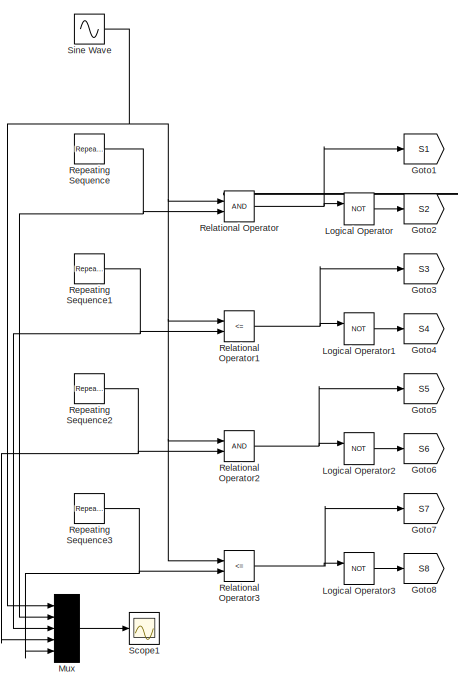
[diagram: root canvas - part 1/2, left side, full height]
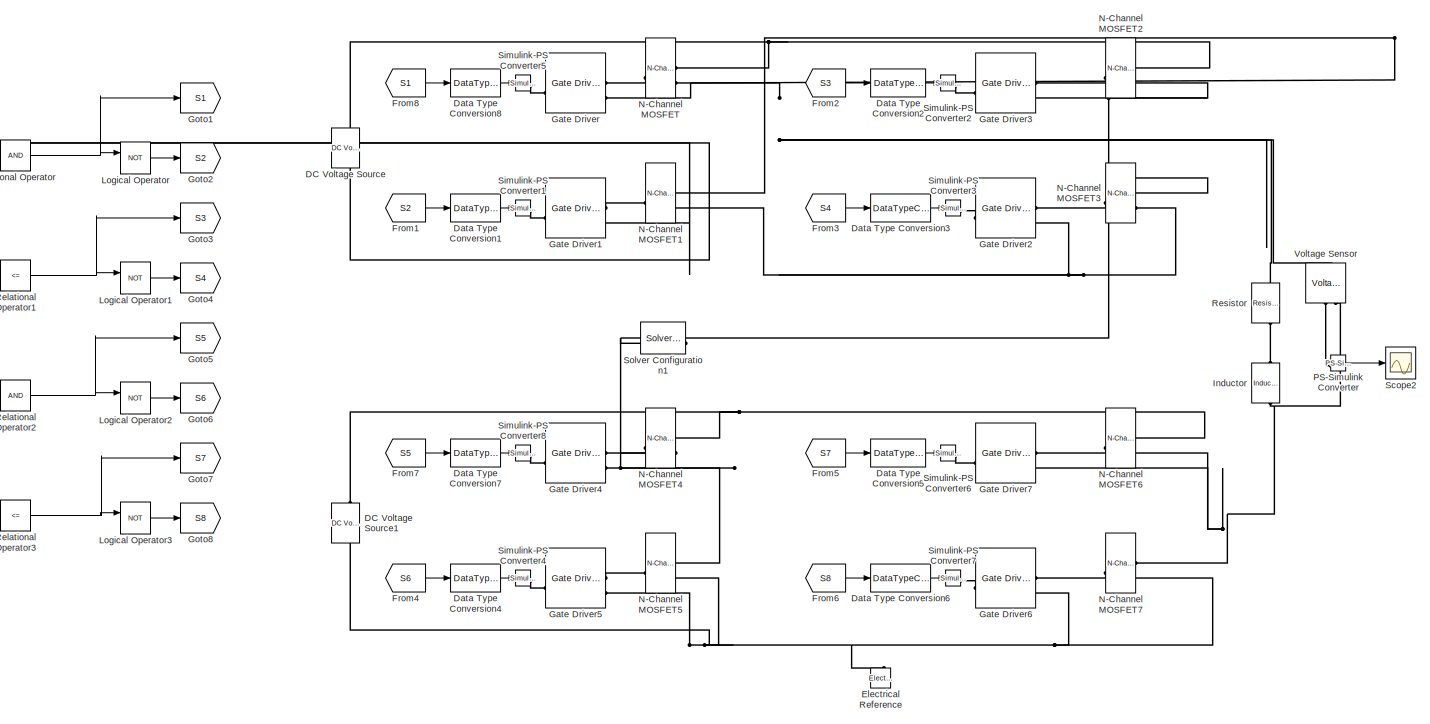
[diagram: root canvas - part 2/2, most of the canvas]
MODEL slx_410971dcdea7
KIND model
CONFIG AbsTol = auto
CONFIG EnableMultiTasking = on
CONFIG FixedStep = 1e-6
CONFIG MaxStep = auto
CONFIG MinStep = auto
CONFIG RelTol = 1e-4
CONFIG SampleTimeConstraint = Unconstrained
CONFIG SolverName = ode15s
CONFIG StartTime = 0.0
CONFIG StopTime = 0.2
BLOCK [Reference] DC Voltage Source  REF=fl_lib/Electrical/Electrical Sources/DC Voltage Source
  NameLocation = right
  SourceBlock = fl_lib/Electrical/Electrical Sources/DC Voltage Source
  SourceType = DC Voltage Source
BLOCK [Reference] DC Voltage Source1  REF=fl_lib/Electrical/Electrical Sources/DC Voltage Source
  NameLocation = right
  SourceBlock = fl_lib/Electrical/Electrical Sources/DC Voltage Source
  SourceType = DC Voltage Source
BLOCK [DataTypeConversion] Data Type Conversion1
  RndMeth = Floor
  SaturateOnIntegerOverflow = off
BLOCK [DataTypeConversion] Data Type Conversion2
  RndMeth = Floor
  SaturateOnIntegerOverflow = off
BLOCK [DataTypeConversion] Data Type Conversion3
  RndMeth = Floor
  SaturateOnIntegerOverflow = off
BLOCK [DataTypeConversion] Data Type Conversion4
  RndMeth = Floor
  SaturateOnIntegerOverflow = off
BLOCK [DataTypeConversion] Data Type Conversion5
  RndMeth = Floor
  SaturateOnIntegerOverflow = off
BLOCK [DataTypeConversion] Data Type Conversion6
  RndMeth = Floor
  SaturateOnIntegerOverflow = off
BLOCK [DataTypeConversion] Data Type Conversion7
  RndMeth = Floor
  SaturateOnIntegerOverflow = off
BLOCK [DataTypeConversion] Data Type Conversion8
  RndMeth = Floor
  SaturateOnIntegerOverflow = off
BLOCK [Reference] Electrical Reference  REF=fl_lib/Electrical/Electrical Elements/Electrical Reference
  NameLocation = right
  SourceBlock = fl_lib/Electrical/Electrical Elements/Electrical Reference
  SourceType = Electrical Reference
BLOCK [From] From1
  GotoTag = S2
BLOCK [From] From2
  GotoTag = S3
BLOCK [From] From3
  GotoTag = S4
BLOCK [From] From4
  GotoTag = S6
BLOCK [From] From5
  GotoTag = S7
BLOCK [From] From6
  GotoTag = S8
BLOCK [From] From7
  GotoTag = S5
BLOCK [From] From8
  GotoTag = S1
BLOCK [Reference] Gate Driver  REF=ee_lib/Semiconductors &
Converters/Gate Driver
  SourceBlock = ee_lib/Semiconductors &\nConverters/Gate Driver
  SourceType = Gate Driver
BLOCK [Reference] Gate Driver1  REF=ee_lib/Semiconductors &
Converters/Gate Driver
  SourceBlock = ee_lib/Semiconductors &\nConverters/Gate Driver
  SourceType = Gate Driver
BLOCK [Reference] Gate Driver2  REF=ee_lib/Semiconductors &
Converters/Gate Driver
  SourceBlock = ee_lib/Semiconductors &\nConverters/Gate Driver
  SourceType = Gate Driver
BLOCK [Reference] Gate Driver3  REF=ee_lib/Semiconductors &
Converters/Gate Driver
  SourceBlock = ee_lib/Semiconductors &\nConverters/Gate Driver
  SourceType = Gate Driver
BLOCK [Reference] Gate Driver4  REF=ee_lib/Semiconductors &
Converters/Gate Driver
  SourceBlock = ee_lib/Semiconductors &\nConverters/Gate Driver
  SourceType = Gate Driver
BLOCK [Reference] Gate Driver5  REF=ee_lib/Semiconductors &
Converters/Gate Driver
  SourceBlock = ee_lib/Semiconductors &\nConverters/Gate Driver
  SourceType = Gate Driver
BLOCK [Reference] Gate Driver6  REF=ee_lib/Semiconductors &
Converters/Gate Driver
  SourceBlock = ee_lib/Semiconductors &\nConverters/Gate Driver
  SourceType = Gate Driver
BLOCK [Reference] Gate Driver7  REF=ee_lib/Semiconductors &
Converters/Gate Driver
  SourceBlock = ee_lib/Semiconductors &\nConverters/Gate Driver
  SourceType = Gate Driver
BLOCK [Goto] Goto1
  GotoTag = S1
BLOCK [Goto] Goto2
  GotoTag = S2
BLOCK [Goto] Goto3
  GotoTag = S3
BLOCK [Goto] Goto4
  GotoTag = S4
BLOCK [Goto] Goto5
  GotoTag = S5
BLOCK [Goto] Goto6
  GotoTag = S6
BLOCK [Goto] Goto7
  GotoTag = S7
BLOCK [Goto] Goto8
  GotoTag = S8
BLOCK [Reference] Inductor  REF=fl_lib/Electrical/Electrical Elements/Inductor
  NameLocation = left
  SourceBlock = fl_lib/Electrical/Electrical Elements/Inductor
  SourceType = Inductor
BLOCK [Logic] Logical Operator
  AllPortsSameDT = off
  Operator = NOT
  OutDataTypeStr = boolean
BLOCK [Logic] Logical Operator1
  AllPortsSameDT = off
  Operator = NOT
  OutDataTypeStr = boolean
BLOCK [Logic] Logical Operator2
  AllPortsSameDT = off
  Operator = NOT
  OutDataTypeStr = boolean
BLOCK [Logic] Logical Operator3
  AllPortsSameDT = off
  Operator = NOT
  OutDataTypeStr = boolean
BLOCK [Mux] Mux
  DisplayOption = bar
  Inputs = 5
BLOCK [Reference] N-Channel MOSFET  REF=ee_lib/Semiconductors &
Converters/N-Channel MOSFET
  SourceBlock = ee_lib/Semiconductors &\nConverters/N-Channel MOSFET
  SourceType = N-Channel MOSFET
BLOCK [Reference] N-Channel MOSFET1  REF=ee_lib/Semiconductors &
Converters/N-Channel MOSFET
  SourceBlock = ee_lib/Semiconductors &\nConverters/N-Channel MOSFET
  SourceType = N-Channel MOSFET
BLOCK [Reference] N-Channel MOSFET2  REF=ee_lib/Semiconductors &
Converters/N-Channel MOSFET
  SourceBlock = ee_lib/Semiconductors &\nConverters/N-Channel MOSFET
  SourceType = N-Channel MOSFET
BLOCK [Reference] N-Channel MOSFET3  REF=ee_lib/Semiconductors &
Converters/N-Channel MOSFET
  SourceBlock = ee_lib/Semiconductors &\nConverters/N-Channel MOSFET
  SourceType = N-Channel MOSFET
BLOCK [Reference] N-Channel MOSFET4  REF=ee_lib/Semiconductors &
Converters/N-Channel MOSFET
  SourceBlock = ee_lib/Semiconductors &\nConverters/N-Channel MOSFET
  SourceType = N-Channel MOSFET
BLOCK [Reference] N-Channel MOSFET5  REF=ee_lib/Semiconductors &
Converters/N-Channel MOSFET
  SourceBlock = ee_lib/Semiconductors &\nConverters/N-Channel MOSFET
  SourceType = N-Channel MOSFET
BLOCK [Reference] N-Channel MOSFET6  REF=ee_lib/Semiconductors &
Converters/N-Channel MOSFET
  SourceBlock = ee_lib/Semiconductors &\nConverters/N-Channel MOSFET
  SourceType = N-Channel MOSFET
BLOCK [Reference] N-Channel MOSFET7  REF=ee_lib/Semiconductors &
Converters/N-Channel MOSFET
  SourceBlock = ee_lib/Semiconductors &\nConverters/N-Channel MOSFET
  SourceType = N-Channel MOSFET
BLOCK [Reference] PS-Simulink Converter  REF=nesl_utility/PS-Simulink
Converter
  SourceBlock = nesl_utility/PS-Simulink\nConverter
  SourceType = PS-Simulink\nConverter
BLOCK [RelationalOperator] Relational Operator
  InputSameDT = off
  OutDataTypeStr = boolean
BLOCK [RelationalOperator] Relational Operator1
  InputSameDT = off
  Operator = <=
  OutDataTypeStr = boolean
BLOCK [RelationalOperator] Relational Operator2
  InputSameDT = off
  OutDataTypeStr = boolean
BLOCK [RelationalOperator] Relational Operator3
  InputSameDT = off
  Operator = <=
  OutDataTypeStr = boolean
BLOCK [Reference] Repeating Sequence  REF=simulink/Sources/Repeating
Sequence
  SourceBlock = simulink/Sources/Repeating\nSequence
  SourceType = Repeating table
BLOCK [Reference] Repeating Sequence1  REF=simulink/Sources/Repeating
Sequence
  SourceBlock = simulink/Sources/Repeating\nSequence
  SourceType = Repeating table
BLOCK [Reference] Repeating Sequence2  REF=simulink/Sources/Repeating
Sequence
  SourceBlock = simulink/Sources/Repeating\nSequence
  SourceType = Repeating table
BLOCK [Reference] Repeating Sequence3  REF=simulink/Sources/Repeating
Sequence
  SourceBlock = simulink/Sources/Repeating\nSequence
  SourceType = Repeating table
BLOCK [Reference] Resistor  REF=fl_lib/Electrical/Electrical Elements/Resistor
  NameLocation = left
  SourceBlock = fl_lib/Electrical/Electrical Elements/Resistor
  SourceType = Resistor
BLOCK [Scope] Scope1
  ActiveDisplayYMaximum = 1.201490399003224
  ActiveDisplayYMinimum = -1.0531958724119033
  DataLoggingVariableName = ScopeData1
  Floating = off
  GraphicalSettings = {"Style":{"BackgroundColor":[0.12941176470588237,0.12941176470588237,0.12941176470588237],"AxesColor":[0.07058823529411765,0.07058823529411765,0.07058823529411765],"LabelsColor":[0.8509803921568627,0.8509803921568627,0.8509803921568627],"PreserveColors":false,"Visible":[true,true,true,true,true],"LineStyle":["-","-","-","-","-"],"LineWidth":[1.5,1.5,1.5,1.5,1.5],"BarWidth":[0.9,0.9,0.9,0.9,0.9],"L...<+2551ch>
  MultipleDisplayCache = [{"MaxYLimMag":1.2497264913706925,"MaxYLimReal":1.201490399003224,"MinYLimMag":0,"MinYLimReal":-1.0531958724119033,"PlotAsMagnitudePhase":false,"ShowGrid":true,"ShowLegend":true,"Title":"%<SignalLabel>","YLabel":""}]
  NumInputPorts = 1
  ScopeFrameLocation = window
  ShowLegend = on
  WasSavedAsWebScope = on
  WindowPosition = [0.000000,36.000000,1920.000000,1009.000000,]
BLOCK [Scope] Scope2
  ActiveDisplayYMaximum = 249.03228578257736
  ActiveDisplayYMinimum = -249.02994093911528
  Floating = off
  GraphicalSettings = {"AxesScalingProperties":{"AlignXAxis":"Center","AlignYAxis":"Center","AutoScaleXAxisLimits":false,"AxesScaling":"Manual","AxesScalingNumUpdates":10,"ExpandOnly":true,"ScaleAxesLimitsAtStop":false,"XAxisDataRange":100,"YAxisDataRange":80},"DisplayProperties":{"ColorOrder":["auto","auto","auto","auto","auto","auto","auto","auto","auto","auto","auto","auto","auto","auto","auto","auto","auto","auto",...<+2032ch>
  MultipleDisplayCache = [{"MaxYLimMag":249.03228578257736,"MaxYLimReal":249.03228578257736,"MinYLimMag":0,"MinYLimReal":-249.02994093911528,"PlotAsMagnitudePhase":false,"ShowGrid":true,"ShowLegend":false,"Title":"%<SignalLabel>","YLabel":""}]
  NumInputPorts = 1
  ScopeFrameLocation = window
  WasSavedAsWebScope = on
  WindowPosition = [1.000000,49.000000,1920.000000,1009.000000,]
BLOCK [Reference] Simulink-PS Converter1  REF=nesl_utility/Simulink-PS
Converter
  SourceBlock = nesl_utility/Simulink-PS\nConverter
  SourceType = Simulink-PS\nConverter
BLOCK [Reference] Simulink-PS Converter2  REF=nesl_utility/Simulink-PS
Converter
  SourceBlock = nesl_utility/Simulink-PS\nConverter
  SourceType = Simulink-PS\nConverter
BLOCK [Reference] Simulink-PS Converter3  REF=nesl_utility/Simulink-PS
Converter
  SourceBlock = nesl_utility/Simulink-PS\nConverter
  SourceType = Simulink-PS\nConverter
BLOCK [Reference] Simulink-PS Converter4  REF=nesl_utility/Simulink-PS
Converter
  SourceBlock = nesl_utility/Simulink-PS\nConverter
  SourceType = Simulink-PS\nConverter
BLOCK [Reference] Simulink-PS Converter5  REF=nesl_utility/Simulink-PS
Converter
  SourceBlock = nesl_utility/Simulink-PS\nConverter
  SourceType = Simulink-PS\nConverter
BLOCK [Reference] Simulink-PS Converter6  REF=nesl_utility/Simulink-PS
Converter
  SourceBlock = nesl_utility/Simulink-PS\nConverter
  SourceType = Simulink-PS\nConverter
BLOCK [Reference] Simulink-PS Converter7  REF=nesl_utility/Simulink-PS
Converter
  SourceBlock = nesl_utility/Simulink-PS\nConverter
  SourceType = Simulink-PS\nConverter
BLOCK [Reference] Simulink-PS Converter8  REF=nesl_utility/Simulink-PS
Converter
  SourceBlock = nesl_utility/Simulink-PS\nConverter
  SourceType = Simulink-PS\nConverter
BLOCK [Sin] Sine Wave
  Amplitude = 0.95
  Frequency = 2*pi*50
  SampleTime = 0
BLOCK [Reference] Solver Configuration1  REF=nesl_utility/Solver
Configuration
  SourceBlock = nesl_utility/Solver\nConfiguration
  SourceType = Solver\nConfiguration
BLOCK [Reference] Voltage Sensor  REF=fl_lib/Electrical/Electrical Sensors/Voltage Sensor
  NameLocation = right
  SourceBlock = fl_lib/Electrical/Electrical Sensors/Voltage Sensor
  SourceType = Voltage Sensor
LINE Data Type Conversion1:1 -> Simulink-PS Converter1:1
LINE Data Type Conversion2:1 -> Simulink-PS Converter2:1
LINE Data Type Conversion3:1 -> Simulink-PS Converter3:1
LINE Data Type Conversion4:1 -> Simulink-PS Converter4:1
LINE Data Type Conversion5:1 -> Simulink-PS Converter6:1
LINE Data Type Conversion6:1 -> Simulink-PS Converter7:1
LINE Data Type Conversion7:1 -> Simulink-PS Converter8:1
LINE Data Type Conversion8:1 -> Simulink-PS Converter5:1
LINE From1:1 -> Data Type Conversion1:1
LINE From2:1 -> Data Type Conversion2:1
LINE From3:1 -> Data Type Conversion3:1
LINE From4:1 -> Data Type Conversion4:1
LINE From5:1 -> Data Type Conversion5:1
LINE From6:1 -> Data Type Conversion6:1
LINE From7:1 -> Data Type Conversion7:1
LINE From8:1 -> Data Type Conversion8:1
LINE Logical Operator1:1 -> Goto4:1
LINE Logical Operator2:1 -> Goto6:1
LINE Logical Operator3:1 -> Goto8:1
LINE Logical Operator:1 -> Goto2:1
LINE Mux:1 -> Scope1:1
LINE PS-Simulink Converter:1 -> Scope2:1
NET Relational Operator1:1 -> Goto3:1, Logical Operator1:1
NET Relational Operator2:1 -> Goto5:1, Logical Operator2:1
NET Relational Operator3:1 -> Goto7:1, Logical Operator3:1
NET Relational Operator:1 -> Goto1:1, Logical Operator:1
NET Repeating Sequence1:1 -> Mux:3, Relational Operator1:2
NET Repeating Sequence2:1 -> Mux:4, Relational Operator2:2
NET Repeating Sequence3:1 -> Mux:5, Relational Operator3:2
NET Repeating Sequence:1 -> Mux:2, Relational Operator:2
NET Sine Wave:1 -> Mux:1, Relational Operator1:1, Relational Operator2:1, Relational Operator3:1, Relational Operator:1
PNET net1: DC Voltage Source1:LConn1 -- N-Channel MOSFET4:RConn1 -- N-Channel MOSFET6:RConn1
PNET net2: DC Voltage Source1:RConn1 -- Electrical Reference:LConn1 -- Gate Driver5:RConn2 -- Gate Driver6:RConn2 -- N-Channel MOSFET5:RConn2 -- N-Channel MOSFET7:RConn2
PNET net3: DC Voltage Source:LConn1 -- N-Channel MOSFET2:RConn1 -- N-Channel MOSFET:RConn1
PNET net4: DC Voltage Source:RConn1 -- Gate Driver1:RConn2 -- Gate Driver2:RConn2 -- N-Channel MOSFET1:RConn2 -- N-Channel MOSFET3:RConn2
PLINE Gate Driver1:LConn1 -- Simulink-PS Converter1:RConn1
PLINE Gate Driver1:RConn1 -- N-Channel MOSFET1:LConn1
PLINE Gate Driver2:LConn1 -- Simulink-PS Converter3:RConn1
PLINE Gate Driver2:RConn1 -- N-Channel MOSFET3:LConn1
PLINE Gate Driver3:LConn1 -- Simulink-PS Converter2:RConn1
PLINE Gate Driver3:RConn1 -- N-Channel MOSFET2:LConn1
PNET net5: Gate Driver3:RConn2 -- Gate Driver4:RConn2 -- N-Channel MOSFET2:RConn2 -- N-Channel MOSFET3:RConn1 -- N-Channel MOSFET4:RConn2 -- N-Channel MOSFET5:RConn1 -- Solver Configuration1:RConn1
PLINE Gate Driver4:LConn1 -- Simulink-PS Converter8:RConn1
PLINE Gate Driver4:RConn1 -- N-Channel MOSFET4:LConn1
PLINE Gate Driver5:LConn1 -- Simulink-PS Converter4:RConn1
PLINE Gate Driver5:RConn1 -- N-Channel MOSFET5:LConn1
PLINE Gate Driver6:LConn1 -- Simulink-PS Converter7:RConn1
PLINE Gate Driver6:RConn1 -- N-Channel MOSFET7:LConn1
PLINE Gate Driver7:LConn1 -- Simulink-PS Converter6:RConn1
PLINE Gate Driver7:RConn1 -- N-Channel MOSFET6:LConn1
PNET net6: Gate Driver7:RConn2 -- Inductor:RConn1 -- N-Channel MOSFET6:RConn2 -- N-Channel MOSFET7:RConn1 -- Voltage Sensor:RConn2
PLINE Gate Driver:LConn1 -- Simulink-PS Converter5:RConn1
PLINE Gate Driver:RConn1 -- N-Channel MOSFET:LConn1
PNET net7: Gate Driver:RConn2 -- N-Channel MOSFET1:RConn1 -- N-Channel MOSFET:RConn2 -- Resistor:LConn1 -- Voltage Sensor:LConn1
PLINE Inductor:LConn1 -- Resistor:RConn1
PLINE PS-Simulink Converter:LConn1 -- Voltage Sensor:RConn1
note: NET lines group one-source signal fan-out (src -> all destinations, sorted); 1:1 wires keep LINE; PNET lines group multi-terminal physical nets as a canonical sorted terminal list (undirected conserving connections); 2-terminal nets keep the pairwise PLINE form
